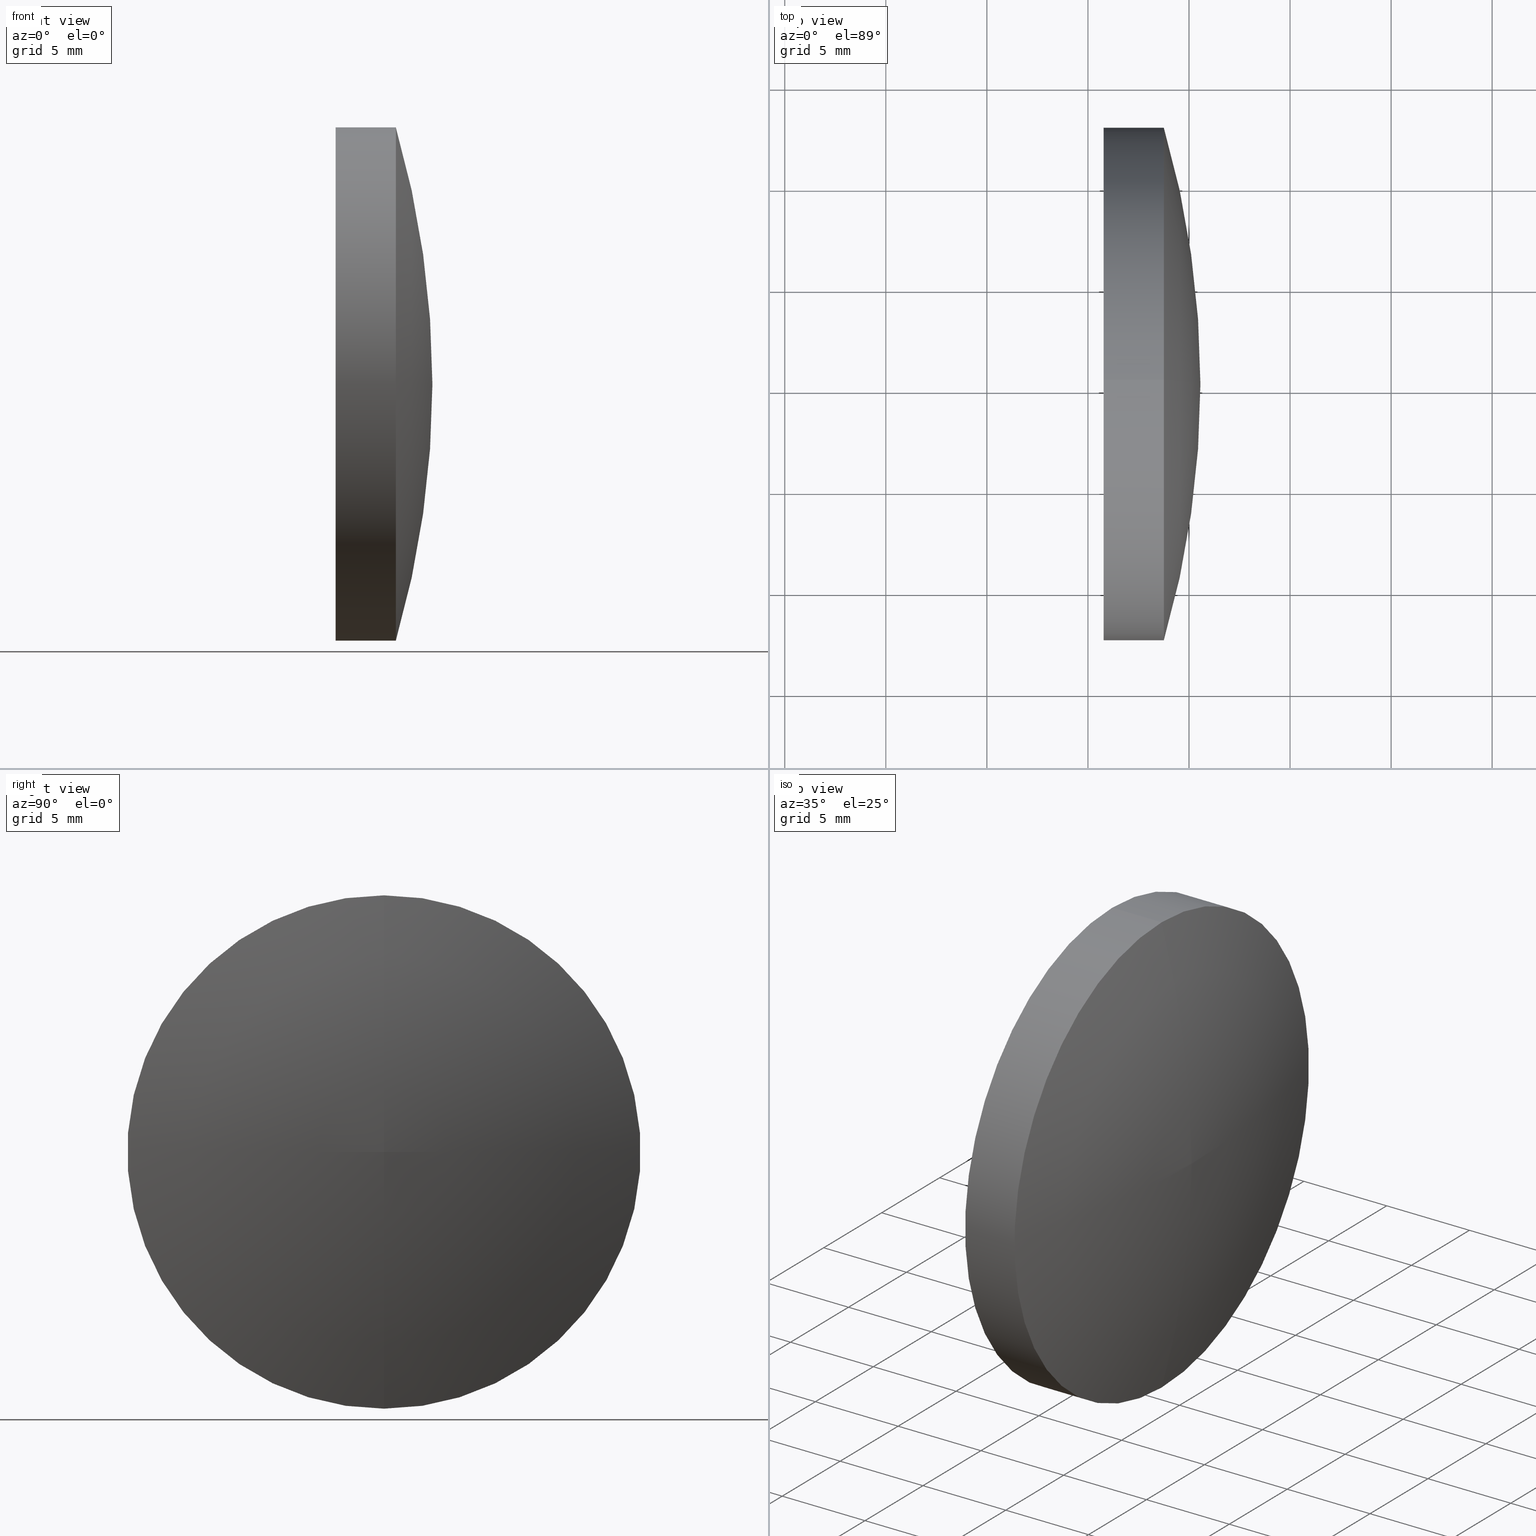
[diagram: canonical four-view strip — front | top / right | iso, engineering-drawing reading convention]
A machine part, canonical four-view strip (front | top / right | iso — engineering-drawing reading convention). The complete STEP part file that produces these views, byte-faithful:
ISO-10303-21;
HEADER;
FILE_DESCRIPTION (( 'STEP AP214' ),
    '1' );
FILE_NAME ('400000.STEP',
    '2019-08-21T02:13:46',
    ( '' ),
    ( '' ),
    'SwSTEP 2.0',
    'SolidWorks 2016',
    '' );
FILE_SCHEMA (( 'AUTOMOTIVE_DESIGN' ));
ENDSEC;

DATA;
#1 = PRODUCT_DEFINITION_SHAPE ( 'NONE', 'NONE',  #8 ) ;
#2 = ORIENTED_EDGE ( 'NONE', *, *, #132, .F. ) ;
#3 = LINE ( 'NONE', #5, #102 ) ;
#4 = DIRECTION ( 'NONE',  ( 0.0000000000000000000, 0.0000000000000000000, 1.000000000000000000 ) ) ;
#5 = CARTESIAN_POINT ( 'NONE',  ( 115.7736064308381300, 65.23355492641219700, -12.70000000000000300 ) ) ;
#6 = EDGE_LOOP ( 'NONE', ( #107, #35, #129 ) ) ;
#7 = CARTESIAN_POINT ( 'NONE',  ( 118.7543184979534900, 65.23355492641219700, 12.69999999999998300 ) ) ;
#8 = PRODUCT_DEFINITION ( 'δ֪', '', #73, #31 ) ;
#9 = CYLINDRICAL_SURFACE ( 'NONE', #79, 12.70000000000000300 ) ;
#10 = COLOUR_RGB ( '',1.000000000000000000, 1.000000000000000000, 1.000000000000000000 ) ;
#11 = PRODUCT ( '400000', '400000', '', ( #118 ) ) ;
#12 = CIRCLE ( 'NONE', #137, 45.89999999999998400 ) ;
#13 = PRESENTATION_STYLE_ASSIGNMENT (( #136 ) ) ;
#14 = TOROIDAL_SURFACE ( 'NONE', #106, -0.06696785705188890200, 45.89999999999998400 ) ;
#15 = DIRECTION ( 'NONE',  ( 0.0000000000000000000, 0.0000000000000000000, 1.000000000000000000 ) ) ;
#16 = DIRECTION ( 'NONE',  ( -1.000000000000000000, -0.0000000000000000000, -0.0000000000000000000 ) ) ;
#17 = VERTEX_POINT ( 'NONE', #134 ) ;
#18 = CARTESIAN_POINT ( 'NONE',  ( 115.7736064308381300, 65.23355492641219700, 0.0000000000000000000 ) ) ;
#19 = ADVANCED_FACE ( 'NONE', ( #120 ), #76, .T. ) ;
#20 = ORIENTED_EDGE ( 'NONE', *, *, #142, .F. ) ;
#21 = ORIENTED_EDGE ( 'NONE', *, *, #30, .F. ) ;
#22 = EDGE_LOOP ( 'NONE', ( #33, #81 ) ) ;
#23 =( LENGTH_UNIT ( ) NAMED_UNIT ( * ) SI_UNIT ( .MILLI., .METRE. ) );
#24 = AXIS2_PLACEMENT_3D ( 'NONE', #56, #77, #27 ) ;
#25 =( NAMED_UNIT ( * ) PLANE_ANGLE_UNIT ( ) SI_UNIT ( $, .RADIAN. ) );
#26 = ORIENTED_EDGE ( 'NONE', *, *, #142, .T. ) ;
#27 = DIRECTION ( 'NONE',  ( 0.0000000000000000000, 0.0000000000000000000, 1.000000000000000000 ) ) ;
#28 = DIRECTION ( 'NONE',  ( 0.0000000000000000000, 0.0000000000000000000, -1.000000000000000000 ) ) ;
#29 = CARTESIAN_POINT ( 'NONE',  ( 115.7736064308381300, 65.23355492641219700, 12.70000000000000300 ) ) ;
#30 = EDGE_CURVE ( 'NONE', #165, #112, #66, .T. ) ;
#31 = PRODUCT_DEFINITION_CONTEXT ( 'detailed design', #92, 'design' ) ;
#32 = CARTESIAN_POINT ( 'NONE',  ( 115.7736064308381300, 65.23355492641219700, 0.0000000000000000000 ) ) ;
#33 = ORIENTED_EDGE ( 'NONE', *, *, #114, .T. ) ;
#34 = CIRCLE ( 'NONE', #116, 12.70000000000000300 ) ;
#35 = ORIENTED_EDGE ( 'NONE', *, *, #30, .T. ) ;
#36 = UNCERTAINTY_MEASURE_WITH_UNIT (LENGTH_MEASURE( 1.000000000000000100E-005 ), #62, 'distance_accuracy_value', 'NONE');
#37 = FACE_OUTER_BOUND ( 'NONE', #49, .T. ) ;
#38 = MECHANICAL_DESIGN_GEOMETRIC_PRESENTATION_REPRESENTATION (  '', ( #158 ), #86 ) ;
#39 = DIRECTION ( 'NONE',  ( 0.0000000000000000000, 0.0000000000000000000, 1.000000000000000000 ) ) ;
#40 = DIRECTION ( 'NONE',  ( 0.0000000000000000000, 0.0000000000000000000, -1.000000000000000000 ) ) ;
#41 = SURFACE_SIDE_STYLE ('',( #87 ) ) ;
#42 = CARTESIAN_POINT ( 'NONE',  ( 115.7736064308381300, 65.23355492641219700, -12.70000000000000300 ) ) ;
#43 = DIRECTION ( 'NONE',  ( -0.0000000000000000000, 1.000000000000000000, 1.224646799147353200E-016 ) ) ;
#44 = DIRECTION ( 'NONE',  ( 0.0000000000000000000, 0.0000000000000000000, 1.000000000000000000 ) ) ;
#45 = PRODUCT_RELATED_PRODUCT_CATEGORY ( 'part', '', ( #11 ) ) ;
#46 = DIRECTION ( 'NONE',  ( 0.0000000000000000000, 0.0000000000000000000, 1.000000000000000000 ) ) ;
#47 = EDGE_CURVE ( 'NONE', #85, #112, #64, .T. ) ;
#48 = ORIENTED_EDGE ( 'NONE', *, *, #114, .F. ) ;
#49 = EDGE_LOOP ( 'NONE', ( #115, #26, #48, #124 ) ) ;
#50 =( NAMED_UNIT ( * ) SI_UNIT ( $, .STERADIAN. ) SOLID_ANGLE_UNIT ( ) );
#51 =( NAMED_UNIT ( * ) PLANE_ANGLE_UNIT ( ) SI_UNIT ( $, .RADIAN. ) );
#52 = VERTEX_POINT ( 'NONE', #42 ) ;
#53 = SURFACE_SIDE_STYLE ('',( #110 ) ) ;
#54 = APPLICATION_PROTOCOL_DEFINITION ( 'draft international standard', 'automotive_design', 1998, #156 ) ;
#55 =( LENGTH_UNIT ( ) NAMED_UNIT ( * ) SI_UNIT ( .MILLI., .METRE. ) );
#56 = CARTESIAN_POINT ( 'NONE',  ( 74.66560643083813900, 65.23355492641219700, 0.0000000000000000000 ) ) ;
#57 = DIRECTION ( 'NONE',  ( 0.0000000000000000000, 0.0000000000000000000, 1.000000000000000000 ) ) ;
#58 = MANIFOLD_SOLID_BREP ( '��ת1', #94 ) ;
#59 = CARTESIAN_POINT ( 'NONE',  ( 74.66560643083813900, 65.23355492641219700, -0.06696785705188890200 ) ) ;
#60 = STYLED_ITEM ( 'NONE', ( #141 ), #84 ) ;
#61 = ORIENTED_EDGE ( 'NONE', *, *, #95, .T. ) ;
#62 =( LENGTH_UNIT ( ) NAMED_UNIT ( * ) SI_UNIT ( .MILLI., .METRE. ) );
#63 = ADVANCED_FACE ( 'NONE', ( #143 ), #14, .T. ) ;
#64 = CIRCLE ( 'NONE', #140, 12.70000000000000300 ) ;
#65 = PRESENTATION_LAYER_ASSIGNMENT (  '', '', ( #60 ) ) ;
#66 = CIRCLE ( 'NONE', #99, 45.89999999999998400 ) ;
#67 = FILL_AREA_STYLE ('',( #111 ) ) ;
#68 = FILL_AREA_STYLE_COLOUR ( '', #10 ) ;
#69 = AXIS2_PLACEMENT_3D ( 'NONE', #138, #150, #4 ) ;
#70 = CARTESIAN_POINT ( 'NONE',  ( 74.66560643083813900, 65.23355492641219700, 0.0000000000000000000 ) ) ;
#71 = DIRECTION ( 'NONE',  ( 0.0000000000000000000, 0.0000000000000000000, 1.000000000000000000 ) ) ;
#72 = DIRECTION ( 'NONE',  ( -1.000000000000000000, -0.0000000000000000000, -0.0000000000000000000 ) ) ;
#73 = PRODUCT_DEFINITION_FORMATION_WITH_SPECIFIED_SOURCE ( '�κ�', '', #11, .NOT_KNOWN. ) ;
#74 = VECTOR ( 'NONE', #72, 1000.000000000000000 ) ;
#75 = APPLICATION_PROTOCOL_DEFINITION ( 'draft international standard', 'automotive_design', 1998, #92 ) ;
#76 = TOROIDAL_SURFACE ( 'NONE', #24, -0.06696785705188890200, 45.89999999999998400 ) ;
#77 = DIRECTION ( 'NONE',  ( -1.000000000000000000, -0.0000000000000000000, -0.0000000000000000000 ) ) ;
#78 = CARTESIAN_POINT ( 'NONE',  ( 118.7543184979534900, 65.23355492641219700, 0.0000000000000000000 ) ) ;
#79 = AXIS2_PLACEMENT_3D ( 'NONE', #109, #96, #15 ) ;
#80 = SHAPE_DEFINITION_REPRESENTATION ( #1, #84 ) ;
#81 = ORIENTED_EDGE ( 'NONE', *, *, #132, .T. ) ;
#82 = PLANE ( 'NONE',  #119 ) ;
#83 = ADVANCED_FACE ( 'NONE', ( #88 ), #9, .T. ) ;
#84 = ADVANCED_BREP_SHAPE_REPRESENTATION ( '400000', ( #58, #105 ), #122 ) ;
#85 = VERTEX_POINT ( 'NONE', #121 ) ;
#86 =( GEOMETRIC_REPRESENTATION_CONTEXT ( 3 ) GLOBAL_UNCERTAINTY_ASSIGNED_CONTEXT ( ( #117 ) ) GLOBAL_UNIT_ASSIGNED_CONTEXT ( ( #55, #108, #160 ) ) REPRESENTATION_CONTEXT ( 'NONE', 'WORKASPACE' ) );
#87 = SURFACE_STYLE_FILL_AREA ( #159 ) ;
#88 = FACE_OUTER_BOUND ( 'NONE', #157, .T. ) ;
#89 = FACE_OUTER_BOUND ( 'NONE', #22, .T. ) ;
#90 = SURFACE_STYLE_USAGE ( .BOTH. , #53 ) ;
#91 = LINE ( 'NONE', #29, #74 ) ;
#92 = APPLICATION_CONTEXT ( 'automotive_design' ) ;
#93 = DIRECTION ( 'NONE',  ( -1.000000000000000000, -0.0000000000000000000, -0.0000000000000000000 ) ) ;
#94 = CLOSED_SHELL ( 'NONE', ( #127, #63, #19, #83, #139 ) ) ;
#95 = EDGE_CURVE ( 'NONE', #165, #85, #12, .T. ) ;
#96 = DIRECTION ( 'NONE',  ( -1.000000000000000000, -0.0000000000000000000, -0.0000000000000000000 ) ) ;
#97 =( GEOMETRIC_REPRESENTATION_CONTEXT ( 3 ) GLOBAL_UNCERTAINTY_ASSIGNED_CONTEXT ( ( #164 ) ) GLOBAL_UNIT_ASSIGNED_CONTEXT ( ( #23, #51, #155 ) ) REPRESENTATION_CONTEXT ( 'NONE', 'WORKASPACE' ) );
#98 = DIRECTION ( 'NONE',  ( -1.000000000000000000, -0.0000000000000000000, -0.0000000000000000000 ) ) ;
#99 = AXIS2_PLACEMENT_3D ( 'NONE', #59, #148, #40 ) ;
#100 = DIRECTION ( 'NONE',  ( -1.000000000000000000, -0.0000000000000000000, -0.0000000000000000000 ) ) ;
#101 = ORIENTED_EDGE ( 'NONE', *, *, #104, .T. ) ;
#102 = VECTOR ( 'NONE', #100, 1000.000000000000000 ) ;
#103 = CIRCLE ( 'NONE', #69, 12.70000000000000300 ) ;
#104 = EDGE_CURVE ( 'NONE', #112, #17, #91, .T. ) ;
#105 = AXIS2_PLACEMENT_3D ( 'NONE', #163, #39, #144 ) ;
#106 = AXIS2_PLACEMENT_3D ( 'NONE', #70, #161, #57 ) ;
#107 = ORIENTED_EDGE ( 'NONE', *, *, #95, .F. ) ;
#108 =( NAMED_UNIT ( * ) PLANE_ANGLE_UNIT ( ) SI_UNIT ( $, .RADIAN. ) );
#109 = CARTESIAN_POINT ( 'NONE',  ( 115.7736064308381300, 65.23355492641219700, 0.0000000000000000000 ) ) ;
#110 = SURFACE_STYLE_FILL_AREA ( #67 ) ;
#111 = FILL_AREA_STYLE_COLOUR ( '', #131 ) ;
#112 = VERTEX_POINT ( 'NONE', #7 ) ;
#113 = DIRECTION ( 'NONE',  ( 0.0000000000000000000, 0.0000000000000000000, 1.000000000000000000 ) ) ;
#114 = EDGE_CURVE ( 'NONE', #17, #52, #34, .T. ) ;
#115 = ORIENTED_EDGE ( 'NONE', *, *, #166, .T. ) ;
#116 = AXIS2_PLACEMENT_3D ( 'NONE', #152, #98, #44 ) ;
#117 = UNCERTAINTY_MEASURE_WITH_UNIT (LENGTH_MEASURE( 1.000000000000000100E-005 ), #55, 'distance_accuracy_value', 'NONE');
#118 = PRODUCT_CONTEXT ( 'NONE', #156, 'mechanical' ) ;
#119 = AXIS2_PLACEMENT_3D ( 'NONE', #18, #123, #28 ) ;
#120 = FACE_OUTER_BOUND ( 'NONE', #6, .T. ) ;
#121 = CARTESIAN_POINT ( 'NONE',  ( 118.7543184979534900, 65.23355492641219700, -12.69999999999998300 ) ) ;
#122 =( GEOMETRIC_REPRESENTATION_CONTEXT ( 3 ) GLOBAL_UNCERTAINTY_ASSIGNED_CONTEXT ( ( #36 ) ) GLOBAL_UNIT_ASSIGNED_CONTEXT ( ( #62, #25, #50 ) ) REPRESENTATION_CONTEXT ( 'NONE', 'WORKASPACE' ) );
#123 = DIRECTION ( 'NONE',  ( 1.000000000000000000, 0.0000000000000000000, 0.0000000000000000000 ) ) ;
#124 = ORIENTED_EDGE ( 'NONE', *, *, #104, .F. ) ;
#125 = CARTESIAN_POINT ( 'NONE',  ( 120.5655575779376200, 65.23355492641219700, 0.0000000000000000000 ) ) ;
#126 = CARTESIAN_POINT ( 'NONE',  ( 74.66560643083813900, 65.23355492641219700, 0.06696785705188890200 ) ) ;
#127 = ADVANCED_FACE ( 'NONE', ( #37 ), #135, .T. ) ;
#128 = AXIS2_PLACEMENT_3D ( 'NONE', #147, #162, #113 ) ;
#129 = ORIENTED_EDGE ( 'NONE', *, *, #47, .F. ) ;
#130 = CIRCLE ( 'NONE', #133, 12.70000000000000300 ) ;
#131 = COLOUR_RGB ( '',1.000000000000000000, 1.000000000000000000, 1.000000000000000000 ) ;
#132 = EDGE_CURVE ( 'NONE', #52, #17, #130, .T. ) ;
#133 = AXIS2_PLACEMENT_3D ( 'NONE', #32, #16, #46 ) ;
#134 = CARTESIAN_POINT ( 'NONE',  ( 115.7736064308381300, 65.23355492641219700, 12.70000000000000300 ) ) ;
#135 = CYLINDRICAL_SURFACE ( 'NONE', #128, 12.70000000000000300 ) ;
#136 = SURFACE_STYLE_USAGE ( .BOTH. , #41 ) ;
#137 = AXIS2_PLACEMENT_3D ( 'NONE', #126, #43, #71 ) ;
#138 = CARTESIAN_POINT ( 'NONE',  ( 118.7543184979534900, 65.23355492641219700, 0.0000000000000000000 ) ) ;
#139 = ADVANCED_FACE ( 'NONE', ( #89 ), #82, .F. ) ;
#140 = AXIS2_PLACEMENT_3D ( 'NONE', #78, #93, #146 ) ;
#141 = PRESENTATION_STYLE_ASSIGNMENT (( #90 ) ) ;
#142 = EDGE_CURVE ( 'NONE', #85, #52, #3, .T. ) ;
#143 = FACE_OUTER_BOUND ( 'NONE', #154, .T. ) ;
#144 = DIRECTION ( 'NONE',  ( 1.000000000000000000, 0.0000000000000000000, 0.0000000000000000000 ) ) ;
#145 = ORIENTED_EDGE ( 'NONE', *, *, #166, .F. ) ;
#146 = DIRECTION ( 'NONE',  ( 0.0000000000000000000, 0.0000000000000000000, 1.000000000000000000 ) ) ;
#147 = CARTESIAN_POINT ( 'NONE',  ( 115.7736064308381300, 65.23355492641219700, 0.0000000000000000000 ) ) ;
#148 = DIRECTION ( 'NONE',  ( 0.0000000000000000000, -1.000000000000000000, 0.0000000000000000000 ) ) ;
#149 = PRESENTATION_LAYER_ASSIGNMENT (  '', '', ( #158 ) ) ;
#150 = DIRECTION ( 'NONE',  ( -1.000000000000000000, -0.0000000000000000000, -0.0000000000000000000 ) ) ;
#151 = ORIENTED_EDGE ( 'NONE', *, *, #47, .T. ) ;
#152 = CARTESIAN_POINT ( 'NONE',  ( 115.7736064308381300, 65.23355492641219700, 0.0000000000000000000 ) ) ;
#153 = MECHANICAL_DESIGN_GEOMETRIC_PRESENTATION_REPRESENTATION (  '', ( #60 ), #97 ) ;
#154 = EDGE_LOOP ( 'NONE', ( #21, #61, #145 ) ) ;
#155 =( NAMED_UNIT ( * ) SI_UNIT ( $, .STERADIAN. ) SOLID_ANGLE_UNIT ( ) );
#156 = APPLICATION_CONTEXT ( 'automotive_design' ) ;
#157 = EDGE_LOOP ( 'NONE', ( #20, #151, #101, #2 ) ) ;
#158 = STYLED_ITEM ( 'NONE', ( #13 ), #58 ) ;
#159 = FILL_AREA_STYLE ('',( #68 ) ) ;
#160 =( NAMED_UNIT ( * ) SI_UNIT ( $, .STERADIAN. ) SOLID_ANGLE_UNIT ( ) );
#161 = DIRECTION ( 'NONE',  ( -1.000000000000000000, -0.0000000000000000000, -0.0000000000000000000 ) ) ;
#162 = DIRECTION ( 'NONE',  ( -1.000000000000000000, -0.0000000000000000000, -0.0000000000000000000 ) ) ;
#163 = CARTESIAN_POINT ( 'NONE',  ( 0.0000000000000000000, 0.0000000000000000000, 0.0000000000000000000 ) ) ;
#164 = UNCERTAINTY_MEASURE_WITH_UNIT (LENGTH_MEASURE( 1.000000000000000100E-005 ), #23, 'distance_accuracy_value', 'NONE');
#165 = VERTEX_POINT ( 'NONE', #125 ) ;
#166 = EDGE_CURVE ( 'NONE', #112, #85, #103, .T. ) ;
ENDSEC;
END-ISO-10303-21;
